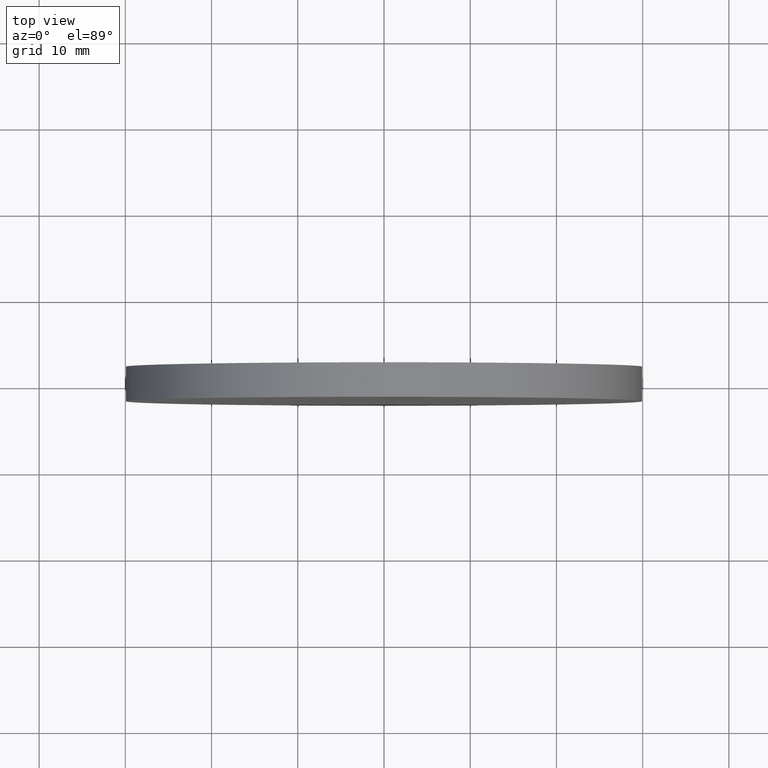
[diagram: clean part render]
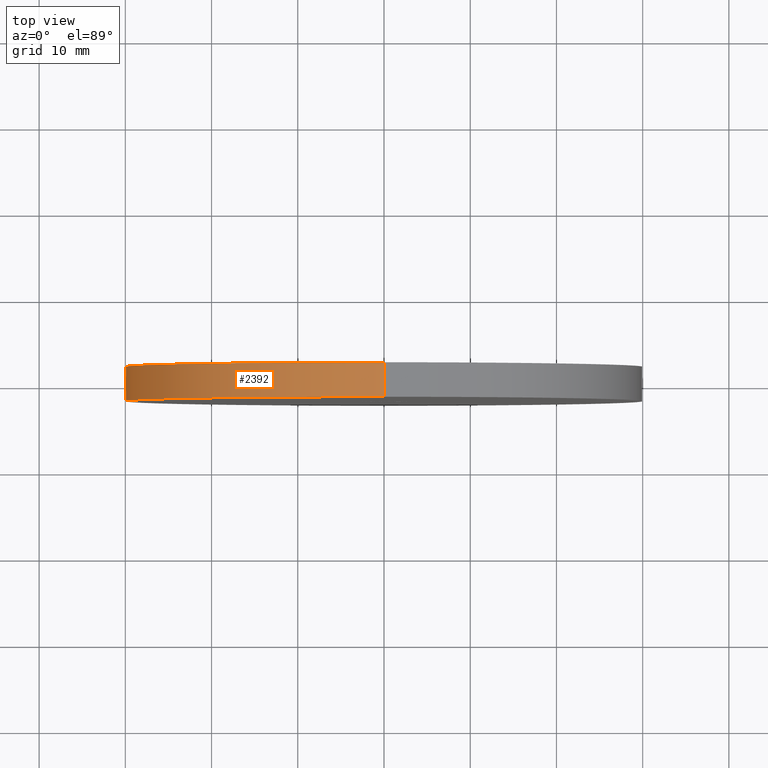
[diagram: same view with one face highlighted and labeled with its STEP entity id]
A machine part, top view. The second image highlights one B-rep face of the part: STEP entity #2392.
In plain terms, the highlighted cylindrical surface (partial cylindrical patch) has radius 30 mm, axis along (-0, -1, -0).
Its self-contained STEP definition (entity closure, byte-faithful):
#144 = VERTEX_POINT ( 'NONE', #7774 ) ;
#425 = DIRECTION ( 'NONE',  ( -0.000000000000000000, -1.000000000000000000, -0.000000000000000000 ) ) ;
#440 = AXIS2_PLACEMENT_3D ( 'NONE', #9817, #9774, #6827 ) ;
#558 = VERTEX_POINT ( 'NONE', #11122 ) ;
#595 = ORIENTED_EDGE ( 'NONE', *, *, #8898, .F. ) ;
#1531 = EDGE_CURVE ( 'NONE', #144, #558, #6512, .T. ) ;
#1650 = VERTEX_POINT ( 'NONE', #8312 ) ;
#2392 = ADVANCED_FACE ( 'NONE', ( #4711 ), #2455, .T. ) ;
#2455 = CYLINDRICAL_SURFACE ( 'NONE', #5500, 30.00000000000000000 ) ;
#2609 = AXIS2_PLACEMENT_3D ( 'NONE', #12082, #9313, #11282 ) ;
#3409 = CARTESIAN_POINT ( 'NONE',  ( 3.673940397442059178E-15, 2.000000000000000000, 30.00000000000000000 ) ) ;
#3420 = EDGE_CURVE ( 'NONE', #1650, #558, #5614, .T. ) ;
#3838 = EDGE_LOOP ( 'NONE', ( #10227, #595, #6754, #9056 ) ) ;
#4172 = VERTEX_POINT ( 'NONE', #10856 ) ;
#4700 = CARTESIAN_POINT ( 'NONE',  ( 0.000000000000000000, 2.000000000000000000, -30.00000000000000000 ) ) ;
#4711 = FACE_OUTER_BOUND ( 'NONE', #3838, .T. ) ;
#5167 = DIRECTION ( 'NONE',  ( 0.000000000000000000, 0.000000000000000000, -1.000000000000000000 ) ) ;
#5247 = DIRECTION ( 'NONE',  ( -0.000000000000000000, -1.000000000000000000, -0.000000000000000000 ) ) ;
#5500 = AXIS2_PLACEMENT_3D ( 'NONE', #10916, #5247, #5167 ) ;
#5614 = CIRCLE ( 'NONE', #440, 30.00000000000000000 ) ;
#6512 = LINE ( 'NONE', #3409, #12213 ) ;
#6754 = ORIENTED_EDGE ( 'NONE', *, *, #10742, .T. ) ;
#6827 = DIRECTION ( 'NONE',  ( 0.000000000000000000, 0.000000000000000000, 1.000000000000000000 ) ) ;
#7774 = CARTESIAN_POINT ( 'NONE',  ( 3.673940397442059178E-15, 2.000000000000000000, 30.00000000000000000 ) ) ;
#8003 = CIRCLE ( 'NONE', #2609, 30.00000000000000000 ) ;
#8312 = CARTESIAN_POINT ( 'NONE',  ( 0.000000000000000000, -2.000000000000000000, -30.00000000000000000 ) ) ;
#8718 = VECTOR ( 'NONE', #10481, 1000.000000000000000 ) ;
#8898 = EDGE_CURVE ( 'NONE', #4172, #144, #8003, .T. ) ;
#9056 = ORIENTED_EDGE ( 'NONE', *, *, #3420, .T. ) ;
#9301 = LINE ( 'NONE', #4700, #8718 ) ;
#9313 = DIRECTION ( 'NONE',  ( 0.000000000000000000, 1.000000000000000000, 0.000000000000000000 ) ) ;
#9774 = DIRECTION ( 'NONE',  ( 0.000000000000000000, 1.000000000000000000, 0.000000000000000000 ) ) ;
#9817 = CARTESIAN_POINT ( 'NONE',  ( 0.000000000000000000, -2.000000000000000000, 0.000000000000000000 ) ) ;
#10227 = ORIENTED_EDGE ( 'NONE', *, *, #1531, .F. ) ;
#10481 = DIRECTION ( 'NONE',  ( -0.000000000000000000, -1.000000000000000000, -0.000000000000000000 ) ) ;
#10742 = EDGE_CURVE ( 'NONE', #4172, #1650, #9301, .T. ) ;
#10856 = CARTESIAN_POINT ( 'NONE',  ( 0.000000000000000000, 2.000000000000000000, -30.00000000000000000 ) ) ;
#10916 = CARTESIAN_POINT ( 'NONE',  ( 0.000000000000000000, 2.000000000000000000, 0.000000000000000000 ) ) ;
#11122 = CARTESIAN_POINT ( 'NONE',  ( 3.673940397442059178E-15, -2.000000000000000000, 30.00000000000000000 ) ) ;
#11282 = DIRECTION ( 'NONE',  ( 0.000000000000000000, 0.000000000000000000, 1.000000000000000000 ) ) ;
#12082 = CARTESIAN_POINT ( 'NONE',  ( 0.000000000000000000, 2.000000000000000000, 0.000000000000000000 ) ) ;
#12213 = VECTOR ( 'NONE', #425, 1000.000000000000000 ) ;